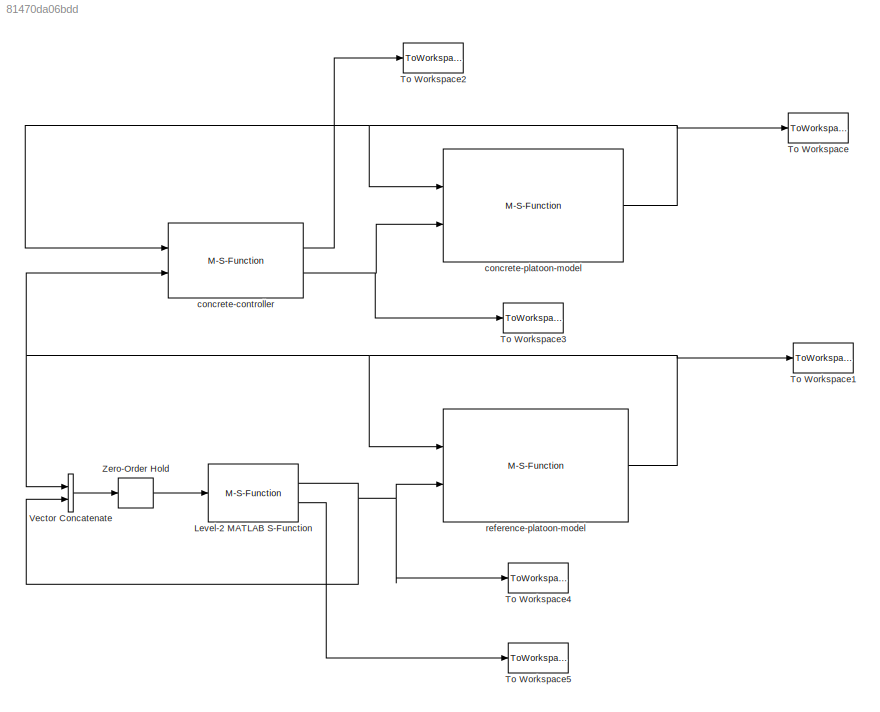
MODEL slx_81470da06bdd
KIND model
CONFIG AbsTol = auto
CONFIG FixedStep = auto
CONFIG MaxStep = auto
CONFIG MinStep = auto
CONFIG RelTol = 1e-3
CONFIG SampleTimeConstraint = Unconstrained
CONFIG Solver = VariableStepAuto
CONFIG SolverMode = Auto
CONFIG SolverName = VariableStepAuto
CONFIG StartFcn = global mdl;\nmdl = run_setup;
CONFIG StartTime = 0.0
CONFIG StopTime = 6
BLOCK [M-S-Function] Level-2 MATLAB S-Function
  FunctionName = reference_controller
  Ports = [1, 2]
BLOCK [ToWorkspace] To Workspace
  FixptAsFi = on
  MaxDataPoints = inf
  Ports = [1]
  SampleTime = -1
  Save2DSignal = 3-D array (concatenate along third dimension)
  VariableName = platoon_full
BLOCK [ToWorkspace] To Workspace1
  FixptAsFi = on
  MaxDataPoints = inf
  Ports = [1]
  SampleTime = -1
  Save2DSignal = 3-D array (concatenate along third dimension)
  VariableName = platoon_ref
BLOCK [ToWorkspace] To Workspace2
  FixptAsFi = on
  MaxDataPoints = inf
  Ports = [1]
  SampleTime = -1
  Save2DSignal = 3-D array (concatenate along third dimension)
  VariableName = rel_error
BLOCK [ToWorkspace] To Workspace3
  FixptAsFi = on
  MaxDataPoints = inf
  Ports = [1]
  SampleTime = -1
  Save2DSignal = 3-D array (concatenate along third dimension)
  VariableName = concrete_u
BLOCK [ToWorkspace] To Workspace4
  FixptAsFi = on
  MaxDataPoints = inf
  Ports = [1]
  SampleTime = -1
  Save2DSignal = 3-D array (concatenate along third dimension)
  VariableName = ref_u
BLOCK [ToWorkspace] To Workspace5
  FixptAsFi = on
  MaxDataPoints = inf
  Ports = [1]
  SampleTime = -1
  Save2DSignal = 3-D array (concatenate along third dimension)
  VariableName = time2solve
BLOCK [Concatenate] Vector Concatenate
  Ports = [2, 1]
BLOCK [ZeroOrderHold] Zero-Order Hold
  SampleTime = .01
BLOCK [M-S-Function] concrete-controller
  FunctionName = concrete_controller
  Ports = [2, 2]
BLOCK [M-S-Function] concrete-platoon-model
  FunctionName = platoon_full
  Ports = [2, 1]
BLOCK [M-S-Function] reference-platoon-model
  FunctionName = platoon_ref
  Ports = [2, 1]
NET Level-2 MATLAB S-Function:1 -> To Workspace4:1, Vector Concatenate:2, reference-platoon-model:2
LINE Level-2 MATLAB S-Function:2 -> To Workspace5:1
LINE Vector Concatenate:1 -> Zero-Order Hold:1
LINE Zero-Order Hold:1 -> Level-2 MATLAB S-Function:1
LINE concrete-controller:1 -> To Workspace2:1
NET concrete-controller:2 -> To Workspace3:1, concrete-platoon-model:2
NET concrete-platoon-model:1 -> To Workspace:1, concrete-controller:1, concrete-platoon-model:1
NET reference-platoon-model:1 -> To Workspace1:1, Vector Concatenate:1, concrete-controller:2, reference-platoon-model:1
note: NET lines group one-source signal fan-out (src -> all destinations, sorted); 1:1 wires keep LINE
